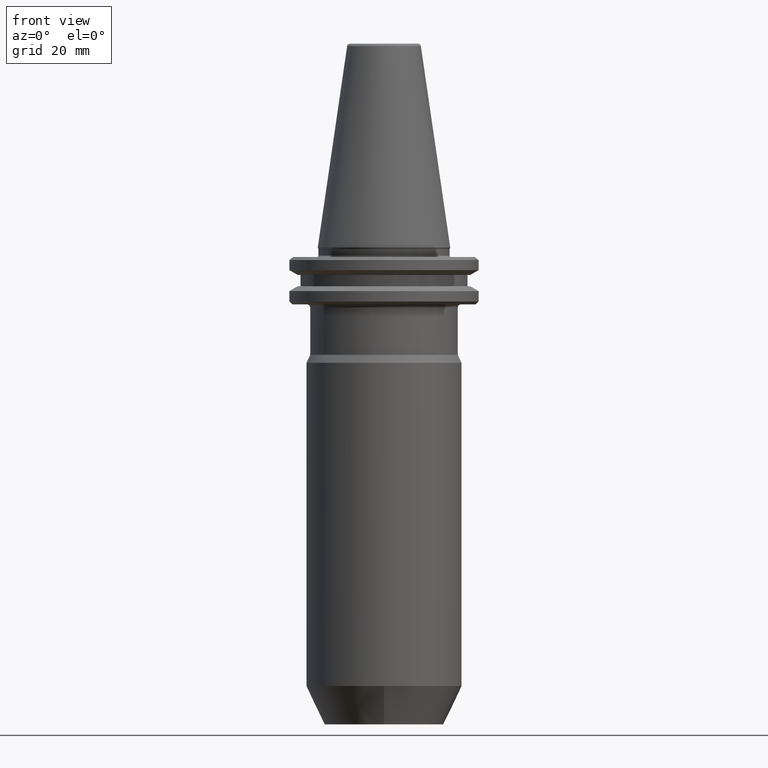
[diagram: clean part render]
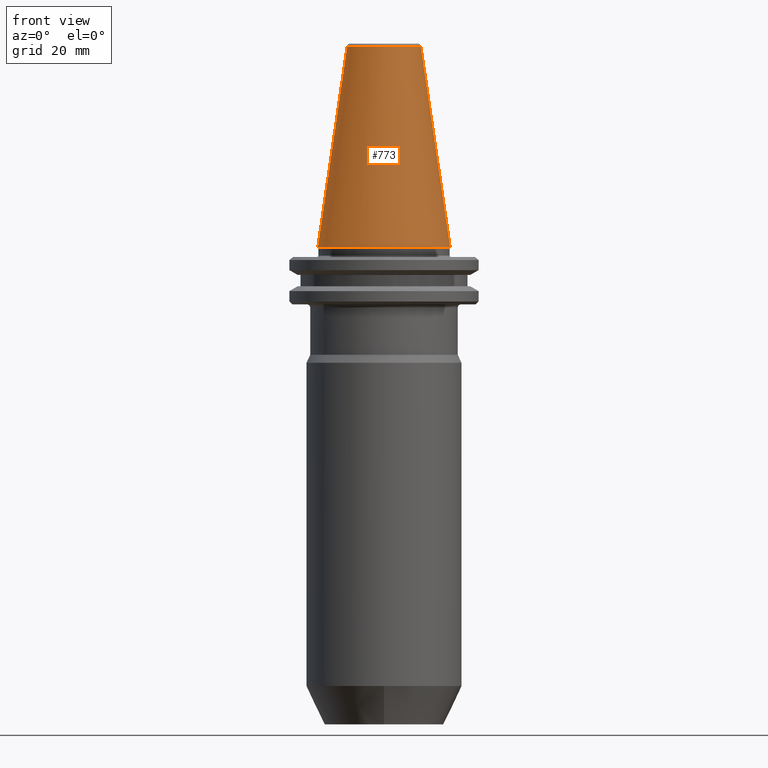
[diagram: same view with one face highlighted and labeled with its STEP entity id]
A machine part, front view. The second image highlights one B-rep face of the part: STEP entity #773.
In plain terms, the highlighted conical surface has half-angle 8.297 deg.
Its self-contained STEP definition (entity closure, byte-faithful):
#28 = ORIENTED_EDGE ( 'NONE', *, *, #577, .T. ) ;
#52 = EDGE_LOOP ( 'NONE', ( #397, #28, #128, #343 ) ) ;
#71 = CONICAL_SURFACE ( 'NONE', #559, 22.22500000000000100, 0.1448138465474190500 ) ;
#127 = CARTESIAN_POINT ( 'NONE',  ( 22.22500000000000100, 2.721777511104992800E-015, 0.0000000000000000000 ) ) ;
#128 = ORIENTED_EDGE ( 'NONE', *, *, #864, .T. ) ;
#146 = VERTEX_POINT ( 'NONE', #1043 ) ;
#177 = CARTESIAN_POINT ( 'NONE',  ( 0.0000000000000000000, 0.0000000000000000000, 67.54430822726729400 ) ) ;
#204 = VERTEX_POINT ( 'NONE', #886 ) ;
#304 = DIRECTION ( 'NONE',  ( -1.000000000000000000, 0.0000000000000000000, 0.0000000000000000000 ) ) ;
#343 = ORIENTED_EDGE ( 'NONE', *, *, #723, .F. ) ;
#375 = CIRCLE ( 'NONE', #820, 12.37469537611110800 ) ;
#379 = CARTESIAN_POINT ( 'NONE',  ( 0.0000000000000000000, 0.0000000000000000000, 0.0000000000000000000 ) ) ;
#397 = ORIENTED_EDGE ( 'NONE', *, *, #1375, .F. ) ;
#503 = DIRECTION ( 'NONE',  ( 1.000000000000000000, 0.0000000000000000000, 9.822541477422708000E-017 ) ) ;
#559 = AXIS2_PLACEMENT_3D ( 'NONE', #1648, #1312, #1551 ) ;
#577 = EDGE_CURVE ( 'NONE', #204, #146, #375, .T. ) ;
#646 = DIRECTION ( 'NONE',  ( 0.1443082272673070500, 1.767266086135363700E-017, -0.9895327864921743500 ) ) ;
#674 = DIRECTION ( 'NONE',  ( -0.1443082272673070500, 0.0000000000000000000, -0.9895327864921743500 ) ) ;
#681 = LINE ( 'NONE', #1214, #1642 ) ;
#723 = EDGE_CURVE ( 'NONE', #1110, #1663, #1543, .T. ) ;
#773 = ADVANCED_FACE ( 'NONE', ( #870 ), #71, .T. ) ;
#820 = AXIS2_PLACEMENT_3D ( 'NONE', #177, #1111, #304 ) ;
#864 = EDGE_CURVE ( 'NONE', #146, #1663, #681, .T. ) ;
#870 = FACE_OUTER_BOUND ( 'NONE', #52, .T. ) ;
#886 = CARTESIAN_POINT ( 'NONE',  ( 12.37469537611110800, 2.118620309691397300E-015, 67.54430822726729400 ) ) ;
#993 = VECTOR ( 'NONE', #646, 1000.000000000000000 ) ;
#1043 = CARTESIAN_POINT ( 'NONE',  ( -12.37469537611110800, 0.0000000000000000000, 67.54430822726729400 ) ) ;
#1110 = VERTEX_POINT ( 'NONE', #1127 ) ;
#1111 = DIRECTION ( 'NONE',  ( 0.0000000000000000000, 0.0000000000000000000, -1.000000000000000000 ) ) ;
#1127 = CARTESIAN_POINT ( 'NONE',  ( 22.22500000000000100, 2.721777511104992800E-015, 0.0000000000000000000 ) ) ;
#1181 = CARTESIAN_POINT ( 'NONE',  ( -22.22500000000000100, 0.0000000000000000000, 0.0000000000000000000 ) ) ;
#1214 = CARTESIAN_POINT ( 'NONE',  ( -22.22500000000000100, 0.0000000000000000000, 0.0000000000000000000 ) ) ;
#1301 = DIRECTION ( 'NONE',  ( -0.0000000000000000000, -0.0000000000000000000, -1.000000000000000000 ) ) ;
#1312 = DIRECTION ( 'NONE',  ( 0.0000000000000000000, 0.0000000000000000000, -1.000000000000000000 ) ) ;
#1365 = LINE ( 'NONE', #127, #993 ) ;
#1375 = EDGE_CURVE ( 'NONE', #204, #1110, #1365, .T. ) ;
#1541 = AXIS2_PLACEMENT_3D ( 'NONE', #379, #1301, #503 ) ;
#1543 = CIRCLE ( 'NONE', #1541, 22.22500000000000500 ) ;
#1551 = DIRECTION ( 'NONE',  ( -1.000000000000000000, 0.0000000000000000000, 0.0000000000000000000 ) ) ;
#1642 = VECTOR ( 'NONE', #674, 1000.000000000000000 ) ;
#1648 = CARTESIAN_POINT ( 'NONE',  ( 0.0000000000000000000, 0.0000000000000000000, 0.0000000000000000000 ) ) ;
#1663 = VERTEX_POINT ( 'NONE', #1181 ) ;